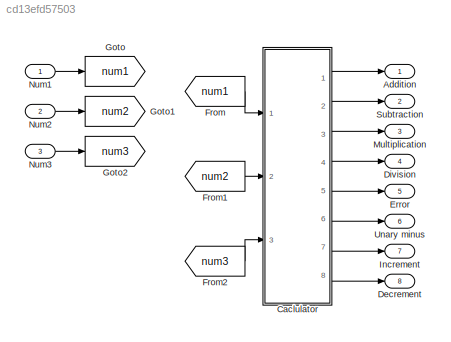
MODEL slx_cd13efd57503
KIND model
CONFIG AbsTol = auto
CONFIG EnableMultiTasking = off
CONFIG FixedStep = auto
CONFIG MaxStep = auto
CONFIG MinStep = auto
CONFIG RelTol = 1e-3
CONFIG SampleTimeConstraint = Unconstrained
CONFIG SolverName = VariableStepAuto
CONFIG StartTime = 0.0
CONFIG StopTime = 10.0
BLOCK [Outport] Addition
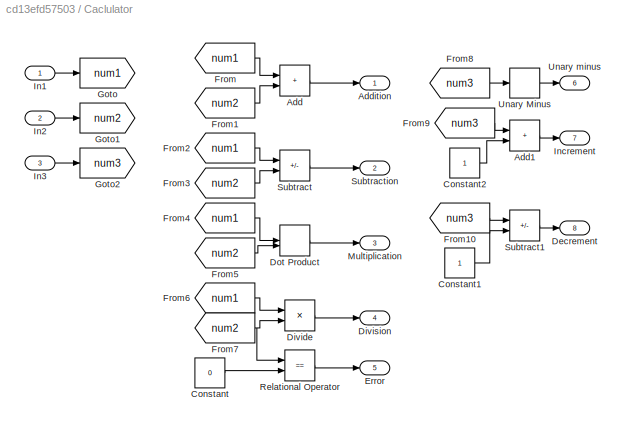
BLOCK [SubSystem] Caclulator
  Ports = [3, 8]
  RTWFcnName = SimpleCalculator
  RTWFcnNameOpts = User specified
  RTWFileName = SimpleCalculator
  RTWSystemCode = Reusable function
  RequestExecContextInheritance = off
  TreatAsAtomicUnit = on
BLOCK [Sum] Caclulator/Add
  IconShape = rectangular
  Ports = [2, 1]
BLOCK [Sum] Caclulator/Add1
  IconShape = rectangular
  Ports = [2, 1]
BLOCK [Outport] Caclulator/Addition
BLOCK [Constant] Caclulator/Constant
  Value = 0
BLOCK [Constant] Caclulator/Constant1
BLOCK [Constant] Caclulator/Constant2
BLOCK [Outport] Caclulator/Decrement
  Port = 8
BLOCK [Product] Caclulator/Divide
  Inputs = */
  Ports = [2, 1]
BLOCK [Outport] Caclulator/Division
  Port = 4
BLOCK [DotProduct] Caclulator/Dot Product
  OutDataTypeStr = Inherit: Inherit via internal rule
BLOCK [Outport] Caclulator/Error
  Port = 5
BLOCK [From] Caclulator/From
  GotoTag = num1
BLOCK [From] Caclulator/From1
  GotoTag = num2
BLOCK [From] Caclulator/From10
  GotoTag = num3
BLOCK [From] Caclulator/From2
  GotoTag = num1
BLOCK [From] Caclulator/From3
  GotoTag = num2
BLOCK [From] Caclulator/From4
  GotoTag = num1
BLOCK [From] Caclulator/From5
  GotoTag = num2
BLOCK [From] Caclulator/From6
  GotoTag = num1
BLOCK [From] Caclulator/From7
  GotoTag = num2
BLOCK [From] Caclulator/From8
  GotoTag = num3
BLOCK [From] Caclulator/From9
  GotoTag = num3
BLOCK [Goto] Caclulator/Goto
  GotoTag = num1
BLOCK [Goto] Caclulator/Goto1
  GotoTag = num2
BLOCK [Goto] Caclulator/Goto2
  GotoTag = num3
BLOCK [Inport] Caclulator/In1
BLOCK [Inport] Caclulator/In2
  Port = 2
BLOCK [Inport] Caclulator/In3
  Port = 3
BLOCK [Outport] Caclulator/Increment
  Port = 7
BLOCK [Outport] Caclulator/Multiplication
  Port = 3
BLOCK [RelationalOperator] Caclulator/Relational Operator
  InputSameDT = off
  Operator = ==
  OutDataTypeStr = boolean
  Ports = [2, 1]
  RndMeth = Simplest
BLOCK [Sum] Caclulator/Subtract
  IconShape = rectangular
  Inputs = +-
  Ports = [2, 1]
BLOCK [Sum] Caclulator/Subtract1
  IconShape = rectangular
  Inputs = +-
  Ports = [2, 1]
BLOCK [Outport] Caclulator/Subtraction
  Port = 2
BLOCK [UnaryMinus] Caclulator/Unary Minus
BLOCK [Outport] Caclulator/Unary minus
  Port = 6
BLOCK [Outport] Decrement
  Port = 8
BLOCK [Outport] Division
  Port = 4
BLOCK [Outport] Error
  Port = 5
BLOCK [From] From
  GotoTag = num1
BLOCK [From] From1
  GotoTag = num2
BLOCK [From] From2
  GotoTag = num3
BLOCK [Goto] Goto
  GotoTag = num1
BLOCK [Goto] Goto1
  GotoTag = num2
BLOCK [Goto] Goto2
  GotoTag = num3
BLOCK [Outport] Increment
  Port = 7
BLOCK [Outport] Multiplication
  Port = 3
BLOCK [Inport] Num1
BLOCK [Inport] Num2
  Port = 2
BLOCK [Inport] Num3
  Port = 3
BLOCK [Outport] Subtraction
  Port = 2
BLOCK [Outport] Unary minus
  Port = 6
LINE Caclulator/Add1:1 -> Caclulator/Increment:1
LINE Caclulator/Add:1 -> Caclulator/Addition:1
LINE Caclulator/Constant1:1 -> Caclulator/Subtract1:2
LINE Caclulator/Constant2:1 -> Caclulator/Add1:2
LINE Caclulator/Constant:1 -> Caclulator/Relational Operator:2
LINE Caclulator/Divide:1 -> Caclulator/Division:1
LINE Caclulator/Dot Product:1 -> Caclulator/Multiplication:1
LINE Caclulator/From10:1 -> Caclulator/Subtract1:1
LINE Caclulator/From1:1 -> Caclulator/Add:2
LINE Caclulator/From2:1 -> Caclulator/Subtract:1
LINE Caclulator/From3:1 -> Caclulator/Subtract:2
LINE Caclulator/From4:1 -> Caclulator/Dot Product:1
LINE Caclulator/From5:1 -> Caclulator/Dot Product:2
LINE Caclulator/From6:1 -> Caclulator/Divide:1
NET Caclulator/From7:1 -> Caclulator/Divide:2, Caclulator/Relational Operator:1
LINE Caclulator/From8:1 -> Caclulator/Unary Minus:1
LINE Caclulator/From9:1 -> Caclulator/Add1:1
LINE Caclulator/From:1 -> Caclulator/Add:1
LINE Caclulator/In1:1 -> Caclulator/Goto:1
LINE Caclulator/In2:1 -> Caclulator/Goto1:1
LINE Caclulator/In3:1 -> Caclulator/Goto2:1
LINE Caclulator/Relational Operator:1 -> Caclulator/Error:1
LINE Caclulator/Subtract1:1 -> Caclulator/Decrement:1
LINE Caclulator/Subtract:1 -> Caclulator/Subtraction:1
LINE Caclulator/Unary Minus:1 -> Caclulator/Unary minus:1
LINE Caclulator:1 -> Addition:1
LINE Caclulator:2 -> Subtraction:1
LINE Caclulator:3 -> Multiplication:1
LINE Caclulator:4 -> Division:1
LINE Caclulator:5 -> Error:1
LINE Caclulator:6 -> Unary minus:1
LINE Caclulator:7 -> Increment:1
LINE Caclulator:8 -> Decrement:1
LINE From1:1 -> Caclulator:2
LINE From2:1 -> Caclulator:3
LINE From:1 -> Caclulator:1
LINE Num1:1 -> Goto:1
LINE Num2:1 -> Goto1:1
LINE Num3:1 -> Goto2:1
note: NET lines group one-source signal fan-out (src -> all destinations, sorted); 1:1 wires keep LINE
